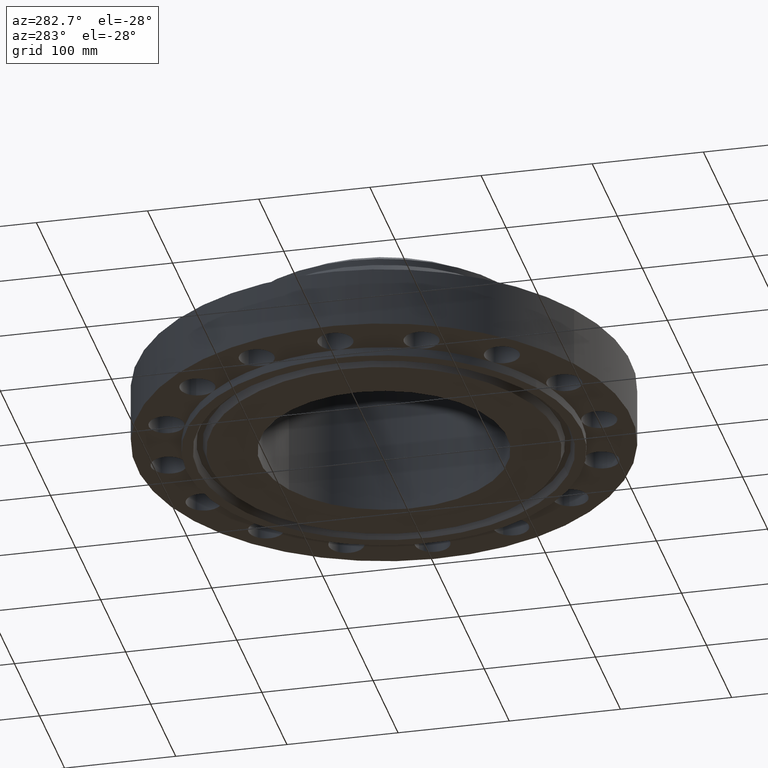
[diagram: clean part render]
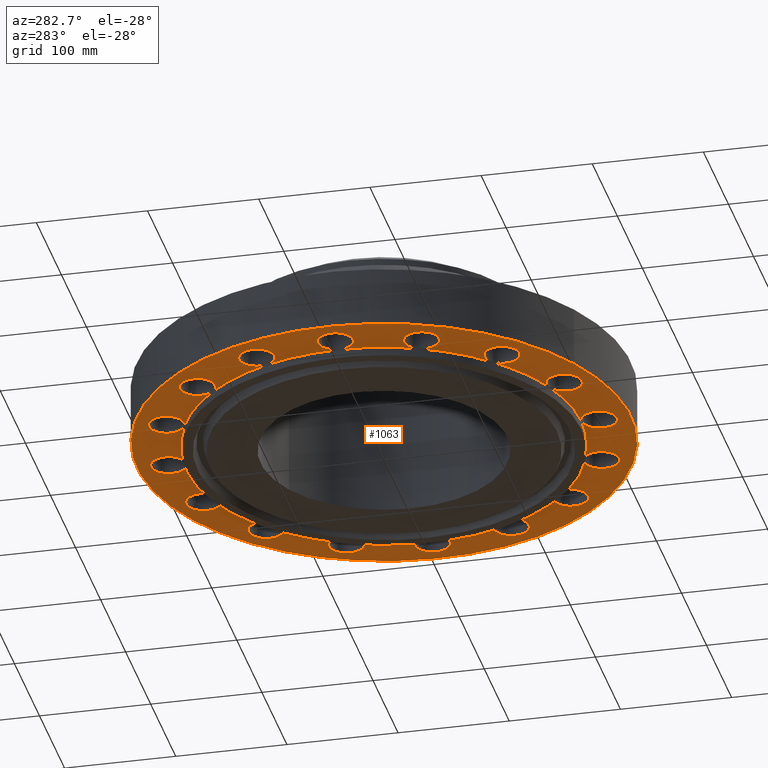
[diagram: same view with one face highlighted and labeled with its STEP entity id]
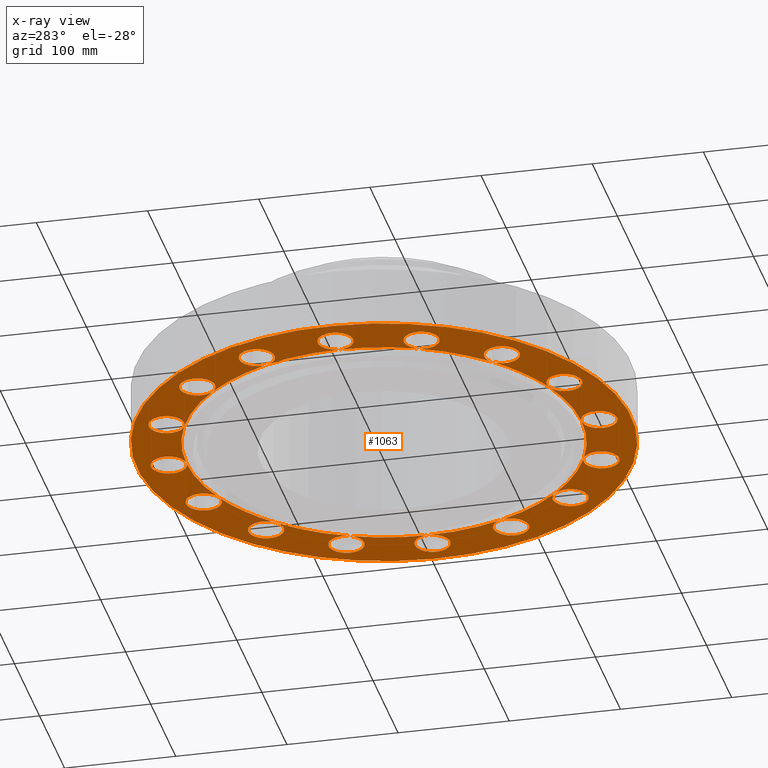
[diagram: x-ray of the same camera — body ghosted, the highlighted face saturated]
A machine part, auxiliary view. The second image highlights one B-rep face of the part: STEP entity #1063.
The next image is the same camera in x-ray: the body ghosted, the highlighted face saturated — about 0% of this face is hidden behind the body in this view.
In plain terms, the highlighted planar face has unit normal (0, 0, -1).
Its self-contained STEP definition (entity closure, byte-faithful):
#51=AXIS2_PLACEMENT_3D('Circle Axis2P3D',#49,#50,$) ;
#77=AXIS2_PLACEMENT_3D('Circle Axis2P3D',#75,#76,$) ;
#84=AXIS2_PLACEMENT_3D('Circle Axis2P3D',#82,#83,$) ;
#107=AXIS2_PLACEMENT_3D('Circle Axis2P3D',#105,#106,$) ;
#142=AXIS2_PLACEMENT_3D('Circle Axis2P3D',#140,#141,$) ;
#541=AXIS2_PLACEMENT_3D('Circle Axis2P3D',#539,#540,$) ;
#548=AXIS2_PLACEMENT_3D('Circle Axis2P3D',#546,#547,$) ;
#555=AXIS2_PLACEMENT_3D('Circle Axis2P3D',#553,#554,$) ;
#562=AXIS2_PLACEMENT_3D('Circle Axis2P3D',#560,#561,$) ;
#569=AXIS2_PLACEMENT_3D('Circle Axis2P3D',#567,#568,$) ;
#576=AXIS2_PLACEMENT_3D('Circle Axis2P3D',#574,#575,$) ;
#583=AXIS2_PLACEMENT_3D('Circle Axis2P3D',#581,#582,$) ;
#588=AXIS2_PLACEMENT_3D('Circle Axis2P3D',#586,#587,$) ;
#595=AXIS2_PLACEMENT_3D('Circle Axis2P3D',#593,#594,$) ;
#627=AXIS2_PLACEMENT_3D('Circle Axis2P3D',#625,#626,$) ;
#634=AXIS2_PLACEMENT_3D('Circle Axis2P3D',#632,#633,$) ;
#641=AXIS2_PLACEMENT_3D('Circle Axis2P3D',#639,#640,$) ;
#648=AXIS2_PLACEMENT_3D('Circle Axis2P3D',#646,#647,$) ;
#655=AXIS2_PLACEMENT_3D('Circle Axis2P3D',#653,#654,$) ;
#662=AXIS2_PLACEMENT_3D('Circle Axis2P3D',#660,#661,$) ;
#669=AXIS2_PLACEMENT_3D('Circle Axis2P3D',#667,#668,$) ;
#676=AXIS2_PLACEMENT_3D('Circle Axis2P3D',#674,#675,$) ;
#683=AXIS2_PLACEMENT_3D('Circle Axis2P3D',#681,#682,$) ;
#704=AXIS2_PLACEMENT_3D('Plane Axis2P3D',#701,#702,#703) ;
#712=AXIS2_PLACEMENT_3D('Circle Axis2P3D',#710,#711,$) ;
#719=AXIS2_PLACEMENT_3D('Circle Axis2P3D',#717,#718,$) ;
#726=AXIS2_PLACEMENT_3D('Circle Axis2P3D',#724,#725,$) ;
#731=AXIS2_PLACEMENT_3D('Circle Axis2P3D',#729,#730,$) ;
#738=AXIS2_PLACEMENT_3D('Circle Axis2P3D',#736,#737,$) ;
#745=AXIS2_PLACEMENT_3D('Circle Axis2P3D',#743,#744,$) ;
#750=AXIS2_PLACEMENT_3D('Circle Axis2P3D',#748,#749,$) ;
#757=AXIS2_PLACEMENT_3D('Circle Axis2P3D',#755,#756,$) ;
#764=AXIS2_PLACEMENT_3D('Circle Axis2P3D',#762,#763,$) ;
#769=AXIS2_PLACEMENT_3D('Circle Axis2P3D',#767,#768,$) ;
#776=AXIS2_PLACEMENT_3D('Circle Axis2P3D',#774,#775,$) ;
#783=AXIS2_PLACEMENT_3D('Circle Axis2P3D',#781,#782,$) ;
#788=AXIS2_PLACEMENT_3D('Circle Axis2P3D',#786,#787,$) ;
#795=AXIS2_PLACEMENT_3D('Circle Axis2P3D',#793,#794,$) ;
#802=AXIS2_PLACEMENT_3D('Circle Axis2P3D',#800,#801,$) ;
#807=AXIS2_PLACEMENT_3D('Circle Axis2P3D',#805,#806,$) ;
#814=AXIS2_PLACEMENT_3D('Circle Axis2P3D',#812,#813,$) ;
#821=AXIS2_PLACEMENT_3D('Circle Axis2P3D',#819,#820,$) ;
#826=AXIS2_PLACEMENT_3D('Circle Axis2P3D',#824,#825,$) ;
#833=AXIS2_PLACEMENT_3D('Circle Axis2P3D',#831,#832,$) ;
#840=AXIS2_PLACEMENT_3D('Circle Axis2P3D',#838,#839,$) ;
#845=AXIS2_PLACEMENT_3D('Circle Axis2P3D',#843,#844,$) ;
#852=AXIS2_PLACEMENT_3D('Circle Axis2P3D',#850,#851,$) ;
#859=AXIS2_PLACEMENT_3D('Circle Axis2P3D',#857,#858,$) ;
#864=AXIS2_PLACEMENT_3D('Circle Axis2P3D',#862,#863,$) ;
#871=AXIS2_PLACEMENT_3D('Circle Axis2P3D',#869,#870,$) ;
#878=AXIS2_PLACEMENT_3D('Circle Axis2P3D',#876,#877,$) ;
#883=AXIS2_PLACEMENT_3D('Circle Axis2P3D',#881,#882,$) ;
#890=AXIS2_PLACEMENT_3D('Circle Axis2P3D',#888,#889,$) ;
#897=AXIS2_PLACEMENT_3D('Circle Axis2P3D',#895,#896,$) ;
#902=AXIS2_PLACEMENT_3D('Circle Axis2P3D',#900,#901,$) ;
#909=AXIS2_PLACEMENT_3D('Circle Axis2P3D',#907,#908,$) ;
#916=AXIS2_PLACEMENT_3D('Circle Axis2P3D',#914,#915,$) ;
#921=AXIS2_PLACEMENT_3D('Circle Axis2P3D',#919,#920,$) ;
#928=AXIS2_PLACEMENT_3D('Circle Axis2P3D',#926,#927,$) ;
#935=AXIS2_PLACEMENT_3D('Circle Axis2P3D',#933,#934,$) ;
#940=AXIS2_PLACEMENT_3D('Circle Axis2P3D',#938,#939,$) ;
#947=AXIS2_PLACEMENT_3D('Circle Axis2P3D',#945,#946,$) ;
#954=AXIS2_PLACEMENT_3D('Circle Axis2P3D',#952,#953,$) ;
#959=AXIS2_PLACEMENT_3D('Circle Axis2P3D',#957,#958,$) ;
#966=AXIS2_PLACEMENT_3D('Circle Axis2P3D',#964,#965,$) ;
#973=AXIS2_PLACEMENT_3D('Circle Axis2P3D',#971,#972,$) ;
#978=AXIS2_PLACEMENT_3D('Circle Axis2P3D',#976,#977,$) ;
#985=AXIS2_PLACEMENT_3D('Circle Axis2P3D',#983,#984,$) ;
#992=AXIS2_PLACEMENT_3D('Circle Axis2P3D',#990,#991,$) ;
#44=CARTESIAN_POINT('Vertex',(-0.548489101184,7.92464096166,0.)) ;
#49=CARTESIAN_POINT('Axis2P3D Location',(0.,7.62500000003,0.)) ;
#53=CARTESIAN_POINT('Vertex',(0.548489101184,7.3253590384,0.)) ;
#75=CARTESIAN_POINT('Axis2P3D Location',(0.,7.62500000003,0.)) ;
#79=CARTESIAN_POINT('Vertex',(-3.00038465792E-015,7.00000000003,8.39223703654E-016)) ;
#82=CARTESIAN_POINT('Axis2P3D Location',(0.,7.62500000003,0.)) ;
#105=CARTESIAN_POINT('Axis2P3D Location',(0.,0.,8.39223703654E-016)) ;
#109=CARTESIAN_POINT('Vertex',(-4.1949734628,-7.67884741657,8.39223703654E-016)) ;
#111=CARTESIAN_POINT('Vertex',(4.1949734628,7.67884741657,8.39223703654E-016)) ;
#140=CARTESIAN_POINT('Axis2P3D Location',(0.,0.,8.39223703654E-016)) ;
#536=CARTESIAN_POINT('Vertex',(-3.35597877024,-6.14307793326,8.39223703654E-016)) ;
#539=CARTESIAN_POINT('Axis2P3D Location',(0.,0.,8.39223703654E-016)) ;
#543=CARTESIAN_POINT('Vertex',(-4.94974746833,-4.94974746833,0.)) ;
#546=CARTESIAN_POINT('Axis2P3D Location',(0.,0.,8.39223703654E-016)) ;
#550=CARTESIAN_POINT('Vertex',(-6.4671567276,-2.67878402657,0.)) ;
#553=CARTESIAN_POINT('Axis2P3D Location',(0.,0.,8.39223703654E-016)) ;
#557=CARTESIAN_POINT('Vertex',(-7.00000000003,-2.23792987641E-015,0.)) ;
#560=CARTESIAN_POINT('Axis2P3D Location',(0.,0.,8.39223703654E-016)) ;
#564=CARTESIAN_POINT('Vertex',(-6.4671567276,2.67878402657,0.)) ;
#567=CARTESIAN_POINT('Axis2P3D Location',(0.,0.,8.39223703654E-016)) ;
#571=CARTESIAN_POINT('Vertex',(-4.94974746833,4.94974746833,0.)) ;
#574=CARTESIAN_POINT('Axis2P3D Location',(0.,0.,8.39223703654E-016)) ;
#578=CARTESIAN_POINT('Vertex',(-2.67878402657,6.4671567276,0.)) ;
#581=CARTESIAN_POINT('Axis2P3D Location',(0.,0.,8.39223703654E-016)) ;
#586=CARTESIAN_POINT('Axis2P3D Location',(0.,0.,8.39223703654E-016)) ;
#590=CARTESIAN_POINT('Vertex',(2.67878402657,6.4671567276,0.)) ;
#593=CARTESIAN_POINT('Axis2P3D Location',(0.,0.,8.39223703654E-016)) ;
#597=CARTESIAN_POINT('Vertex',(3.35597877024,6.14307793326,8.39223703654E-016)) ;
#625=CARTESIAN_POINT('Axis2P3D Location',(0.,0.,8.39223703654E-016)) ;
#629=CARTESIAN_POINT('Vertex',(4.94974746833,4.94974746833,0.)) ;
#632=CARTESIAN_POINT('Axis2P3D Location',(0.,0.,8.39223703654E-016)) ;
#636=CARTESIAN_POINT('Vertex',(6.4671567276,2.67878402657,0.)) ;
#639=CARTESIAN_POINT('Axis2P3D Location',(0.,0.,8.39223703654E-016)) ;
#643=CARTESIAN_POINT('Vertex',(7.00000000003,1.1189649382E-015,0.)) ;
#646=CARTESIAN_POINT('Axis2P3D Location',(0.,0.,8.39223703654E-016)) ;
#650=CARTESIAN_POINT('Vertex',(6.4671567276,-2.67878402657,0.)) ;
#653=CARTESIAN_POINT('Axis2P3D Location',(0.,0.,8.39223703654E-016)) ;
#657=CARTESIAN_POINT('Vertex',(4.94974746833,-4.94974746833,0.)) ;
#660=CARTESIAN_POINT('Axis2P3D Location',(0.,0.,8.39223703654E-016)) ;
#664=CARTESIAN_POINT('Vertex',(2.67878402657,-6.4671567276,0.)) ;
#667=CARTESIAN_POINT('Axis2P3D Location',(0.,0.,8.39223703654E-016)) ;
#671=CARTESIAN_POINT('Vertex',(1.14402491806E-015,-7.00000000003,0.)) ;
#674=CARTESIAN_POINT('Axis2P3D Location',(0.,0.,8.39223703654E-016)) ;
#678=CARTESIAN_POINT('Vertex',(-2.67878402657,-6.4671567276,0.)) ;
#681=CARTESIAN_POINT('Axis2P3D Location',(0.,0.,8.39223703654E-016)) ;
#701=CARTESIAN_POINT('Axis2P3D Location',(0.,7.00000000003,0.)) ;
#710=CARTESIAN_POINT('Axis2P3D Location',(5.39168920657,5.39168920657,0.)) ;
#714=CARTESIAN_POINT('Vertex',(5.56765141353,4.79197068783,0.)) ;
#717=CARTESIAN_POINT('Axis2P3D Location',(5.39168920657,5.39168920657,0.)) ;
#721=CARTESIAN_POINT('Vertex',(5.2157269996,5.99140772531,0.)) ;
#724=CARTESIAN_POINT('Axis2P3D Location',(5.39168920657,5.39168920657,0.)) ;
#729=CARTESIAN_POINT('Axis2P3D Location',(2.9179611718,7.04458143543,0.)) ;
#733=CARTESIAN_POINT('Vertex',(3.31003139451,6.55785159202,0.)) ;
#736=CARTESIAN_POINT('Axis2P3D Location',(2.9179611718,7.04458143543,0.)) ;
#740=CARTESIAN_POINT('Vertex',(2.52589094908,7.53131127883,0.)) ;
#743=CARTESIAN_POINT('Axis2P3D Location',(2.9179611718,7.04458143543,0.)) ;
#748=CARTESIAN_POINT('Axis2P3D Location',(-2.9179611718,7.04458143543,0.)) ;
#752=CARTESIAN_POINT('Vertex',(-2.29655568573,6.97764697573,0.)) ;
#755=CARTESIAN_POINT('Axis2P3D Location',(-2.9179611718,7.04458143543,0.)) ;
#759=CARTESIAN_POINT('Vertex',(-3.53936665786,7.11151589512,0.)) ;
#762=CARTESIAN_POINT('Axis2P3D Location',(-2.9179611718,7.04458143543,0.)) ;
#767=CARTESIAN_POINT('Axis2P3D Location',(-5.39168920657,5.39168920657,0.)) ;
#771=CARTESIAN_POINT('Vertex',(-4.79197068783,5.56765141353,0.)) ;
#774=CARTESIAN_POINT('Axis2P3D Location',(-5.39168920657,5.39168920657,0.)) ;
#778=CARTESIAN_POINT('Vertex',(-5.99140772531,5.2157269996,0.)) ;
#781=CARTESIAN_POINT('Axis2P3D Location',(-5.39168920657,5.39168920657,0.)) ;
#786=CARTESIAN_POINT('Axis2P3D Location',(-7.04458143543,2.9179611718,0.)) ;
#790=CARTESIAN_POINT('Vertex',(-6.55785159202,3.31003139451,-1.67844740731E-015)) ;
#793=CARTESIAN_POINT('Axis2P3D Location',(-7.04458143543,2.9179611718,0.)) ;
#797=CARTESIAN_POINT('Vertex',(-7.53131127883,2.52589094908,0.)) ;
#800=CARTESIAN_POINT('Axis2P3D Location',(-7.04458143543,2.9179611718,0.)) ;
#805=CARTESIAN_POINT('Axis2P3D Location',(-7.62500000003,-2.23792987641E-015,0.)) ;
#809=CARTESIAN_POINT('Vertex',(-7.3253590384,0.548489101184,0.)) ;
#812=CARTESIAN_POINT('Axis2P3D Location',(-7.62500000003,-2.23792987641E-015,0.)) ;
#816=CARTESIAN_POINT('Vertex',(-7.92464096166,-0.548489101184,0.)) ;
#819=CARTESIAN_POINT('Axis2P3D Location',(-7.62500000003,-2.23792987641E-015,0.)) ;
#824=CARTESIAN_POINT('Axis2P3D Location',(-7.04458143543,-2.9179611718,0.)) ;
#828=CARTESIAN_POINT('Vertex',(-6.97764697573,-2.29655568573,0.)) ;
#831=CARTESIAN_POINT('Axis2P3D Location',(-7.04458143543,-2.9179611718,0.)) ;
#835=CARTESIAN_POINT('Vertex',(-7.11151589512,-3.53936665786,0.)) ;
#838=CARTESIAN_POINT('Axis2P3D Location',(-7.04458143543,-2.9179611718,0.)) ;
#843=CARTESIAN_POINT('Axis2P3D Location',(-5.39168920657,-5.39168920657,0.)) ;
#847=CARTESIAN_POINT('Vertex',(-5.56765141353,-4.79197068783,0.)) ;
#850=CARTESIAN_POINT('Axis2P3D Location',(-5.39168920657,-5.39168920657,0.)) ;
#854=CARTESIAN_POINT('Vertex',(-5.2157269996,-5.99140772531,0.)) ;
#857=CARTESIAN_POINT('Axis2P3D Location',(-5.39168920657,-5.39168920657,0.)) ;
#862=CARTESIAN_POINT('Axis2P3D Location',(-2.9179611718,-7.04458143543,0.)) ;
#866=CARTESIAN_POINT('Vertex',(-3.31003139451,-6.55785159202,0.)) ;
#869=CARTESIAN_POINT('Axis2P3D Location',(-2.9179611718,-7.04458143543,0.)) ;
#873=CARTESIAN_POINT('Vertex',(-2.52589094908,-7.53131127883,0.)) ;
#876=CARTESIAN_POINT('Axis2P3D Location',(-2.9179611718,-7.04458143543,0.)) ;
#881=CARTESIAN_POINT('Axis2P3D Location',(1.25883555548E-015,-7.62500000003,0.)) ;
#885=CARTESIAN_POINT('Vertex',(-0.548489101184,-7.3253590384,0.)) ;
#888=CARTESIAN_POINT('Axis2P3D Location',(8.39223703654E-016,-7.62500000003,0.)) ;
#892=CARTESIAN_POINT('Vertex',(0.548489101184,-7.92464096166,0.)) ;
#895=CARTESIAN_POINT('Axis2P3D Location',(1.25883555548E-015,-7.62500000003,0.)) ;
#900=CARTESIAN_POINT('Axis2P3D Location',(2.9179611718,-7.04458143543,0.)) ;
#904=CARTESIAN_POINT('Vertex',(2.29655568573,-6.97764697573,0.)) ;
#907=CARTESIAN_POINT('Axis2P3D Location',(2.9179611718,-7.04458143543,0.)) ;
#911=CARTESIAN_POINT('Vertex',(3.53936665786,-7.11151589512,0.)) ;
#914=CARTESIAN_POINT('Axis2P3D Location',(2.9179611718,-7.04458143543,0.)) ;
#919=CARTESIAN_POINT('Axis2P3D Location',(5.39168920657,-5.39168920657,0.)) ;
#923=CARTESIAN_POINT('Vertex',(4.79197068783,-5.56765141353,0.)) ;
#926=CARTESIAN_POINT('Axis2P3D Location',(5.39168920657,-5.39168920657,0.)) ;
#930=CARTESIAN_POINT('Vertex',(5.99140772531,-5.2157269996,0.)) ;
#933=CARTESIAN_POINT('Axis2P3D Location',(5.39168920657,-5.39168920657,0.)) ;
#938=CARTESIAN_POINT('Axis2P3D Location',(7.04458143543,-2.9179611718,0.)) ;
#942=CARTESIAN_POINT('Vertex',(6.55785159202,-3.31003139451,0.)) ;
#945=CARTESIAN_POINT('Axis2P3D Location',(7.04458143543,-2.9179611718,0.)) ;
#949=CARTESIAN_POINT('Vertex',(7.53131127883,-2.52589094908,0.)) ;
#952=CARTESIAN_POINT('Axis2P3D Location',(7.04458143543,-2.9179611718,0.)) ;
#957=CARTESIAN_POINT('Axis2P3D Location',(7.62500000003,1.1189649382E-015,0.)) ;
#961=CARTESIAN_POINT('Vertex',(7.3253590384,-0.548489101184,0.)) ;
#964=CARTESIAN_POINT('Axis2P3D Location',(7.62500000003,0.,0.)) ;
#968=CARTESIAN_POINT('Vertex',(7.92464096166,0.548489101184,0.)) ;
#971=CARTESIAN_POINT('Axis2P3D Location',(7.62500000003,1.1189649382E-015,0.)) ;
#976=CARTESIAN_POINT('Axis2P3D Location',(7.04458143543,2.9179611718,0.)) ;
#980=CARTESIAN_POINT('Vertex',(6.97764697573,2.29655568573,0.)) ;
#983=CARTESIAN_POINT('Axis2P3D Location',(7.04458143543,2.9179611718,0.)) ;
#987=CARTESIAN_POINT('Vertex',(7.11151589512,3.53936665786,0.)) ;
#990=CARTESIAN_POINT('Axis2P3D Location',(7.04458143543,2.9179611718,0.)) ;
#50=DIRECTION('Axis2P3D Direction',(0.,-0.,-0.0393700787402)) ;
#76=DIRECTION('Axis2P3D Direction',(0.,-0.,-0.0393700787402)) ;
#83=DIRECTION('Axis2P3D Direction',(0.,-0.,-0.0393700787402)) ;
#106=DIRECTION('Axis2P3D Direction',(0.,0.,-0.0393700787402)) ;
#141=DIRECTION('Axis2P3D Direction',(0.,0.,-0.0393700787402)) ;
#540=DIRECTION('Axis2P3D Direction',(0.,0.,-0.0393700787402)) ;
#547=DIRECTION('Axis2P3D Direction',(0.,0.,-0.0393700787402)) ;
#554=DIRECTION('Axis2P3D Direction',(0.,0.,-0.0393700787402)) ;
#561=DIRECTION('Axis2P3D Direction',(0.,0.,-0.0393700787402)) ;
#568=DIRECTION('Axis2P3D Direction',(0.,0.,-0.0393700787402)) ;
#575=DIRECTION('Axis2P3D Direction',(0.,0.,-0.0393700787402)) ;
#582=DIRECTION('Axis2P3D Direction',(0.,0.,-0.0393700787402)) ;
#587=DIRECTION('Axis2P3D Direction',(0.,0.,-0.0393700787402)) ;
#594=DIRECTION('Axis2P3D Direction',(0.,0.,-0.0393700787402)) ;
#626=DIRECTION('Axis2P3D Direction',(0.,0.,-0.0393700787402)) ;
#633=DIRECTION('Axis2P3D Direction',(0.,0.,-0.0393700787402)) ;
#640=DIRECTION('Axis2P3D Direction',(0.,0.,-0.0393700787402)) ;
#647=DIRECTION('Axis2P3D Direction',(0.,0.,-0.0393700787402)) ;
#654=DIRECTION('Axis2P3D Direction',(0.,0.,-0.0393700787402)) ;
#661=DIRECTION('Axis2P3D Direction',(0.,0.,-0.0393700787402)) ;
#668=DIRECTION('Axis2P3D Direction',(0.,0.,-0.0393700787402)) ;
#675=DIRECTION('Axis2P3D Direction',(0.,0.,-0.0393700787402)) ;
#682=DIRECTION('Axis2P3D Direction',(0.,0.,-0.0393700787402)) ;
#702=DIRECTION('Axis2P3D Direction',(0.,0.,-0.0393700787402)) ;
#703=DIRECTION('Axis2P3D XDirection',(0.0393700787402,0.,0.)) ;
#711=DIRECTION('Axis2P3D Direction',(0.,0.,-0.0393700787402)) ;
#718=DIRECTION('Axis2P3D Direction',(0.,0.,-0.0393700787402)) ;
#725=DIRECTION('Axis2P3D Direction',(0.,0.,-0.0393700787402)) ;
#730=DIRECTION('Axis2P3D Direction',(0.,0.,-0.0393700787402)) ;
#737=DIRECTION('Axis2P3D Direction',(0.,0.,-0.0393700787402)) ;
#744=DIRECTION('Axis2P3D Direction',(0.,0.,-0.0393700787402)) ;
#749=DIRECTION('Axis2P3D Direction',(0.,0.,-0.0393700787402)) ;
#756=DIRECTION('Axis2P3D Direction',(0.,0.,-0.0393700787402)) ;
#763=DIRECTION('Axis2P3D Direction',(0.,0.,-0.0393700787402)) ;
#768=DIRECTION('Axis2P3D Direction',(0.,0.,-0.0393700787402)) ;
#775=DIRECTION('Axis2P3D Direction',(0.,0.,-0.0393700787402)) ;
#782=DIRECTION('Axis2P3D Direction',(0.,0.,-0.0393700787402)) ;
#787=DIRECTION('Axis2P3D Direction',(0.,0.,-0.0393700787402)) ;
#794=DIRECTION('Axis2P3D Direction',(0.,0.,-0.0393700787402)) ;
#801=DIRECTION('Axis2P3D Direction',(0.,0.,-0.0393700787402)) ;
#806=DIRECTION('Axis2P3D Direction',(0.,0.,-0.0393700787402)) ;
#813=DIRECTION('Axis2P3D Direction',(0.,0.,-0.0393700787402)) ;
#820=DIRECTION('Axis2P3D Direction',(0.,0.,-0.0393700787402)) ;
#825=DIRECTION('Axis2P3D Direction',(0.,0.,-0.0393700787402)) ;
#832=DIRECTION('Axis2P3D Direction',(0.,0.,-0.0393700787402)) ;
#839=DIRECTION('Axis2P3D Direction',(0.,0.,-0.0393700787402)) ;
#844=DIRECTION('Axis2P3D Direction',(0.,0.,-0.0393700787402)) ;
#851=DIRECTION('Axis2P3D Direction',(0.,0.,-0.0393700787402)) ;
#858=DIRECTION('Axis2P3D Direction',(0.,0.,-0.0393700787402)) ;
#863=DIRECTION('Axis2P3D Direction',(0.,0.,-0.0393700787402)) ;
#870=DIRECTION('Axis2P3D Direction',(0.,0.,-0.0393700787402)) ;
#877=DIRECTION('Axis2P3D Direction',(0.,0.,-0.0393700787402)) ;
#882=DIRECTION('Axis2P3D Direction',(0.,0.,-0.0393700787402)) ;
#889=DIRECTION('Axis2P3D Direction',(0.,0.,-0.0393700787402)) ;
#896=DIRECTION('Axis2P3D Direction',(0.,0.,-0.0393700787402)) ;
#901=DIRECTION('Axis2P3D Direction',(0.,0.,-0.0393700787402)) ;
#908=DIRECTION('Axis2P3D Direction',(0.,0.,-0.0393700787402)) ;
#915=DIRECTION('Axis2P3D Direction',(0.,0.,-0.0393700787402)) ;
#920=DIRECTION('Axis2P3D Direction',(0.,0.,-0.0393700787402)) ;
#927=DIRECTION('Axis2P3D Direction',(0.,0.,-0.0393700787402)) ;
#934=DIRECTION('Axis2P3D Direction',(0.,0.,-0.0393700787402)) ;
#939=DIRECTION('Axis2P3D Direction',(0.,0.,-0.0393700787402)) ;
#946=DIRECTION('Axis2P3D Direction',(0.,0.,-0.0393700787402)) ;
#953=DIRECTION('Axis2P3D Direction',(0.,0.,-0.0393700787402)) ;
#958=DIRECTION('Axis2P3D Direction',(0.,0.,-0.0393700787402)) ;
#965=DIRECTION('Axis2P3D Direction',(0.,0.,-0.0393700787402)) ;
#972=DIRECTION('Axis2P3D Direction',(0.,0.,-0.0393700787402)) ;
#977=DIRECTION('Axis2P3D Direction',(0.,0.,-0.0393700787402)) ;
#984=DIRECTION('Axis2P3D Direction',(0.,0.,-0.0393700787402)) ;
#991=DIRECTION('Axis2P3D Direction',(0.,0.,-0.0393700787402)) ;
#707=ORIENTED_EDGE('',*,*,#113,.T.) ;
#708=ORIENTED_EDGE('',*,*,#144,.T.) ;
#996=ORIENTED_EDGE('',*,*,#716,.F.) ;
#997=ORIENTED_EDGE('',*,*,#723,.F.) ;
#998=ORIENTED_EDGE('',*,*,#728,.F.) ;
#999=ORIENTED_EDGE('',*,*,#631,.F.) ;
#1000=ORIENTED_EDGE('',*,*,#599,.F.) ;
#1001=ORIENTED_EDGE('',*,*,#735,.F.) ;
#1002=ORIENTED_EDGE('',*,*,#742,.F.) ;
#1003=ORIENTED_EDGE('',*,*,#747,.F.) ;
#1004=ORIENTED_EDGE('',*,*,#592,.F.) ;
#1005=ORIENTED_EDGE('',*,*,#81,.F.) ;
#1006=ORIENTED_EDGE('',*,*,#55,.F.) ;
#1007=ORIENTED_EDGE('',*,*,#86,.F.) ;
#1008=ORIENTED_EDGE('',*,*,#585,.F.) ;
#1009=ORIENTED_EDGE('',*,*,#754,.F.) ;
#1010=ORIENTED_EDGE('',*,*,#761,.F.) ;
#1011=ORIENTED_EDGE('',*,*,#766,.F.) ;
#1012=ORIENTED_EDGE('',*,*,#580,.F.) ;
#1013=ORIENTED_EDGE('',*,*,#773,.F.) ;
#1014=ORIENTED_EDGE('',*,*,#780,.F.) ;
#1015=ORIENTED_EDGE('',*,*,#785,.F.) ;
#1016=ORIENTED_EDGE('',*,*,#573,.F.) ;
#1017=ORIENTED_EDGE('',*,*,#792,.F.) ;
#1018=ORIENTED_EDGE('',*,*,#799,.F.) ;
#1019=ORIENTED_EDGE('',*,*,#804,.F.) ;
#1020=ORIENTED_EDGE('',*,*,#566,.F.) ;
#1021=ORIENTED_EDGE('',*,*,#811,.F.) ;
#1022=ORIENTED_EDGE('',*,*,#818,.F.) ;
#1023=ORIENTED_EDGE('',*,*,#823,.F.) ;
#1024=ORIENTED_EDGE('',*,*,#559,.F.) ;
#1025=ORIENTED_EDGE('',*,*,#830,.F.) ;
#1026=ORIENTED_EDGE('',*,*,#837,.F.) ;
#1027=ORIENTED_EDGE('',*,*,#842,.F.) ;
#1028=ORIENTED_EDGE('',*,*,#552,.F.) ;
#1029=ORIENTED_EDGE('',*,*,#849,.F.) ;
#1030=ORIENTED_EDGE('',*,*,#856,.F.) ;
#1031=ORIENTED_EDGE('',*,*,#861,.F.) ;
#1032=ORIENTED_EDGE('',*,*,#545,.F.) ;
#1033=ORIENTED_EDGE('',*,*,#685,.F.) ;
#1034=ORIENTED_EDGE('',*,*,#868,.F.) ;
#1035=ORIENTED_EDGE('',*,*,#875,.F.) ;
#1036=ORIENTED_EDGE('',*,*,#880,.F.) ;
#1037=ORIENTED_EDGE('',*,*,#680,.F.) ;
#1038=ORIENTED_EDGE('',*,*,#887,.F.) ;
#1039=ORIENTED_EDGE('',*,*,#894,.F.) ;
#1040=ORIENTED_EDGE('',*,*,#899,.F.) ;
#1041=ORIENTED_EDGE('',*,*,#673,.F.) ;
#1042=ORIENTED_EDGE('',*,*,#906,.F.) ;
#1043=ORIENTED_EDGE('',*,*,#913,.F.) ;
#1044=ORIENTED_EDGE('',*,*,#918,.F.) ;
#1045=ORIENTED_EDGE('',*,*,#666,.F.) ;
#1046=ORIENTED_EDGE('',*,*,#925,.F.) ;
#1047=ORIENTED_EDGE('',*,*,#932,.F.) ;
#1048=ORIENTED_EDGE('',*,*,#937,.F.) ;
#1049=ORIENTED_EDGE('',*,*,#659,.F.) ;
#1050=ORIENTED_EDGE('',*,*,#944,.F.) ;
#1051=ORIENTED_EDGE('',*,*,#951,.F.) ;
#1052=ORIENTED_EDGE('',*,*,#956,.F.) ;
#1053=ORIENTED_EDGE('',*,*,#652,.F.) ;
#1054=ORIENTED_EDGE('',*,*,#963,.F.) ;
#1055=ORIENTED_EDGE('',*,*,#970,.F.) ;
#1056=ORIENTED_EDGE('',*,*,#975,.F.) ;
#1057=ORIENTED_EDGE('',*,*,#645,.F.) ;
#1058=ORIENTED_EDGE('',*,*,#982,.F.) ;
#1059=ORIENTED_EDGE('',*,*,#989,.F.) ;
#1060=ORIENTED_EDGE('',*,*,#994,.F.) ;
#1061=ORIENTED_EDGE('',*,*,#638,.F.) ;
#1062=FACE_BOUND('',#995,.T.) ;
#1063=ADVANCED_FACE('PartBody',(#709,#1062),#705,.T.) ;
#52=CIRCLE('generated circle',#51,0.625000000003) ;
#78=CIRCLE('generated circle',#77,0.625000000003) ;
#85=CIRCLE('generated circle',#84,0.625000000003) ;
#108=CIRCLE('generated circle',#107,8.75000000003) ;
#143=CIRCLE('generated circle',#142,8.75000000003) ;
#542=CIRCLE('generated circle',#541,7.00000000003) ;
#549=CIRCLE('generated circle',#548,7.00000000003) ;
#556=CIRCLE('generated circle',#555,7.00000000003) ;
#563=CIRCLE('generated circle',#562,7.00000000003) ;
#570=CIRCLE('generated circle',#569,7.00000000003) ;
#577=CIRCLE('generated circle',#576,7.00000000003) ;
#584=CIRCLE('generated circle',#583,7.00000000003) ;
#589=CIRCLE('generated circle',#588,7.00000000003) ;
#596=CIRCLE('generated circle',#595,7.00000000003) ;
#628=CIRCLE('generated circle',#627,7.00000000003) ;
#635=CIRCLE('generated circle',#634,7.00000000003) ;
#642=CIRCLE('generated circle',#641,7.00000000003) ;
#649=CIRCLE('generated circle',#648,7.00000000003) ;
#656=CIRCLE('generated circle',#655,7.00000000003) ;
#663=CIRCLE('generated circle',#662,7.00000000003) ;
#670=CIRCLE('generated circle',#669,7.00000000003) ;
#677=CIRCLE('generated circle',#676,7.00000000003) ;
#684=CIRCLE('generated circle',#683,7.00000000003) ;
#713=CIRCLE('generated circle',#712,0.625000000002) ;
#720=CIRCLE('generated circle',#719,0.625000000002) ;
#727=CIRCLE('generated circle',#726,0.625000000002) ;
#732=CIRCLE('generated circle',#731,0.625000000003) ;
#739=CIRCLE('generated circle',#738,0.625000000003) ;
#746=CIRCLE('generated circle',#745,0.625000000003) ;
#751=CIRCLE('generated circle',#750,0.625000000002) ;
#758=CIRCLE('generated circle',#757,0.625000000002) ;
#765=CIRCLE('generated circle',#764,0.625000000002) ;
#770=CIRCLE('generated circle',#769,0.625000000002) ;
#777=CIRCLE('generated circle',#776,0.625000000002) ;
#784=CIRCLE('generated circle',#783,0.625000000002) ;
#789=CIRCLE('generated circle',#788,0.625000000003) ;
#796=CIRCLE('generated circle',#795,0.625000000003) ;
#803=CIRCLE('generated circle',#802,0.625000000003) ;
#808=CIRCLE('generated circle',#807,0.625000000003) ;
#815=CIRCLE('generated circle',#814,0.625000000003) ;
#822=CIRCLE('generated circle',#821,0.625000000003) ;
#827=CIRCLE('generated circle',#826,0.625000000002) ;
#834=CIRCLE('generated circle',#833,0.625000000002) ;
#841=CIRCLE('generated circle',#840,0.625000000002) ;
#846=CIRCLE('generated circle',#845,0.625000000002) ;
#853=CIRCLE('generated circle',#852,0.625000000002) ;
#860=CIRCLE('generated circle',#859,0.625000000002) ;
#865=CIRCLE('generated circle',#864,0.625000000002) ;
#872=CIRCLE('generated circle',#871,0.625000000002) ;
#879=CIRCLE('generated circle',#878,0.625000000002) ;
#884=CIRCLE('generated circle',#883,0.625000000003) ;
#891=CIRCLE('generated circle',#890,0.625000000003) ;
#898=CIRCLE('generated circle',#897,0.625000000003) ;
#903=CIRCLE('generated circle',#902,0.625000000003) ;
#910=CIRCLE('generated circle',#909,0.625000000003) ;
#917=CIRCLE('generated circle',#916,0.625000000003) ;
#922=CIRCLE('generated circle',#921,0.625000000002) ;
#929=CIRCLE('generated circle',#928,0.625000000002) ;
#936=CIRCLE('generated circle',#935,0.625000000002) ;
#941=CIRCLE('generated circle',#940,0.625000000002) ;
#948=CIRCLE('generated circle',#947,0.625000000002) ;
#955=CIRCLE('generated circle',#954,0.625000000002) ;
#960=CIRCLE('generated circle',#959,0.625000000003) ;
#967=CIRCLE('generated circle',#966,0.625000000003) ;
#974=CIRCLE('generated circle',#973,0.625000000003) ;
#979=CIRCLE('generated circle',#978,0.625000000003) ;
#986=CIRCLE('generated circle',#985,0.625000000003) ;
#993=CIRCLE('generated circle',#992,0.625000000003) ;
#55=EDGE_CURVE('',#45,#54,#52,.T.) ;
#81=EDGE_CURVE('',#54,#80,#78,.T.) ;
#86=EDGE_CURVE('',#80,#45,#85,.T.) ;
#113=EDGE_CURVE('',#110,#112,#108,.T.) ;
#144=EDGE_CURVE('',#112,#110,#143,.T.) ;
#545=EDGE_CURVE('',#537,#544,#542,.T.) ;
#552=EDGE_CURVE('',#544,#551,#549,.T.) ;
#559=EDGE_CURVE('',#551,#558,#556,.T.) ;
#566=EDGE_CURVE('',#558,#565,#563,.T.) ;
#573=EDGE_CURVE('',#565,#572,#570,.T.) ;
#580=EDGE_CURVE('',#572,#579,#577,.T.) ;
#585=EDGE_CURVE('',#579,#80,#584,.T.) ;
#592=EDGE_CURVE('',#80,#591,#589,.T.) ;
#599=EDGE_CURVE('',#591,#598,#596,.T.) ;
#631=EDGE_CURVE('',#598,#630,#628,.T.) ;
#638=EDGE_CURVE('',#630,#637,#635,.T.) ;
#645=EDGE_CURVE('',#637,#644,#642,.T.) ;
#652=EDGE_CURVE('',#644,#651,#649,.T.) ;
#659=EDGE_CURVE('',#651,#658,#656,.T.) ;
#666=EDGE_CURVE('',#658,#665,#663,.T.) ;
#673=EDGE_CURVE('',#665,#672,#670,.T.) ;
#680=EDGE_CURVE('',#672,#679,#677,.T.) ;
#685=EDGE_CURVE('',#679,#537,#684,.T.) ;
#716=EDGE_CURVE('',#715,#630,#713,.T.) ;
#723=EDGE_CURVE('',#722,#715,#720,.T.) ;
#728=EDGE_CURVE('',#630,#722,#727,.T.) ;
#735=EDGE_CURVE('',#734,#591,#732,.T.) ;
#742=EDGE_CURVE('',#741,#734,#739,.T.) ;
#747=EDGE_CURVE('',#591,#741,#746,.T.) ;
#754=EDGE_CURVE('',#753,#579,#751,.T.) ;
#761=EDGE_CURVE('',#760,#753,#758,.T.) ;
#766=EDGE_CURVE('',#579,#760,#765,.T.) ;
#773=EDGE_CURVE('',#772,#572,#770,.T.) ;
#780=EDGE_CURVE('',#779,#772,#777,.T.) ;
#785=EDGE_CURVE('',#572,#779,#784,.T.) ;
#792=EDGE_CURVE('',#791,#565,#789,.T.) ;
#799=EDGE_CURVE('',#798,#791,#796,.T.) ;
#804=EDGE_CURVE('',#565,#798,#803,.T.) ;
#811=EDGE_CURVE('',#810,#558,#808,.T.) ;
#818=EDGE_CURVE('',#817,#810,#815,.T.) ;
#823=EDGE_CURVE('',#558,#817,#822,.T.) ;
#830=EDGE_CURVE('',#829,#551,#827,.T.) ;
#837=EDGE_CURVE('',#836,#829,#834,.T.) ;
#842=EDGE_CURVE('',#551,#836,#841,.T.) ;
#849=EDGE_CURVE('',#848,#544,#846,.T.) ;
#856=EDGE_CURVE('',#855,#848,#853,.T.) ;
#861=EDGE_CURVE('',#544,#855,#860,.T.) ;
#868=EDGE_CURVE('',#867,#679,#865,.T.) ;
#875=EDGE_CURVE('',#874,#867,#872,.T.) ;
#880=EDGE_CURVE('',#679,#874,#879,.T.) ;
#887=EDGE_CURVE('',#886,#672,#884,.T.) ;
#894=EDGE_CURVE('',#893,#886,#891,.T.) ;
#899=EDGE_CURVE('',#672,#893,#898,.T.) ;
#906=EDGE_CURVE('',#905,#665,#903,.T.) ;
#913=EDGE_CURVE('',#912,#905,#910,.T.) ;
#918=EDGE_CURVE('',#665,#912,#917,.T.) ;
#925=EDGE_CURVE('',#924,#658,#922,.T.) ;
#932=EDGE_CURVE('',#931,#924,#929,.T.) ;
#937=EDGE_CURVE('',#658,#931,#936,.T.) ;
#944=EDGE_CURVE('',#943,#651,#941,.T.) ;
#951=EDGE_CURVE('',#950,#943,#948,.T.) ;
#956=EDGE_CURVE('',#651,#950,#955,.T.) ;
#963=EDGE_CURVE('',#962,#644,#960,.T.) ;
#970=EDGE_CURVE('',#969,#962,#967,.T.) ;
#975=EDGE_CURVE('',#644,#969,#974,.T.) ;
#982=EDGE_CURVE('',#981,#637,#979,.T.) ;
#989=EDGE_CURVE('',#988,#981,#986,.T.) ;
#994=EDGE_CURVE('',#637,#988,#993,.T.) ;
#706=EDGE_LOOP('',(#707,#708)) ;
#995=EDGE_LOOP('',(#996,#997,#998,#999,#1000,#1001,#1002,#1003,#1004,#1005,#1006,#1007,#1008,#1009,#1010,#1011,#1012,#1013,#1014,#1015,#1016,#1017,#1018,#1019,#1020,#1021,#1022,#1023,#1024,#1025,#1026,#1027,#1028,#1029,#1030,#1031,#1032,#1033,#1034,#1035,#1036,#1037,#1038,#1039,#1040,#1041,#1042,#1043,#1044,#1045,#1046,#1047,#1048,#1049,#1050,#1051,#1052,#1053,#1054,#1055,#1056,#1057,#1058,#1059,#1060,#1061)) ;
#709=FACE_OUTER_BOUND('',#706,.T.) ;
#705=PLANE('',#704) ;
#45=VERTEX_POINT('',#44) ;
#54=VERTEX_POINT('',#53) ;
#80=VERTEX_POINT('',#79) ;
#110=VERTEX_POINT('',#109) ;
#112=VERTEX_POINT('',#111) ;
#537=VERTEX_POINT('',#536) ;
#544=VERTEX_POINT('',#543) ;
#551=VERTEX_POINT('',#550) ;
#558=VERTEX_POINT('',#557) ;
#565=VERTEX_POINT('',#564) ;
#572=VERTEX_POINT('',#571) ;
#579=VERTEX_POINT('',#578) ;
#591=VERTEX_POINT('',#590) ;
#598=VERTEX_POINT('',#597) ;
#630=VERTEX_POINT('',#629) ;
#637=VERTEX_POINT('',#636) ;
#644=VERTEX_POINT('',#643) ;
#651=VERTEX_POINT('',#650) ;
#658=VERTEX_POINT('',#657) ;
#665=VERTEX_POINT('',#664) ;
#672=VERTEX_POINT('',#671) ;
#679=VERTEX_POINT('',#678) ;
#715=VERTEX_POINT('',#714) ;
#722=VERTEX_POINT('',#721) ;
#734=VERTEX_POINT('',#733) ;
#741=VERTEX_POINT('',#740) ;
#753=VERTEX_POINT('',#752) ;
#760=VERTEX_POINT('',#759) ;
#772=VERTEX_POINT('',#771) ;
#779=VERTEX_POINT('',#778) ;
#791=VERTEX_POINT('',#790) ;
#798=VERTEX_POINT('',#797) ;
#810=VERTEX_POINT('',#809) ;
#817=VERTEX_POINT('',#816) ;
#829=VERTEX_POINT('',#828) ;
#836=VERTEX_POINT('',#835) ;
#848=VERTEX_POINT('',#847) ;
#855=VERTEX_POINT('',#854) ;
#867=VERTEX_POINT('',#866) ;
#874=VERTEX_POINT('',#873) ;
#886=VERTEX_POINT('',#885) ;
#893=VERTEX_POINT('',#892) ;
#905=VERTEX_POINT('',#904) ;
#912=VERTEX_POINT('',#911) ;
#924=VERTEX_POINT('',#923) ;
#931=VERTEX_POINT('',#930) ;
#943=VERTEX_POINT('',#942) ;
#950=VERTEX_POINT('',#949) ;
#962=VERTEX_POINT('',#961) ;
#969=VERTEX_POINT('',#968) ;
#981=VERTEX_POINT('',#980) ;
#988=VERTEX_POINT('',#987) ;